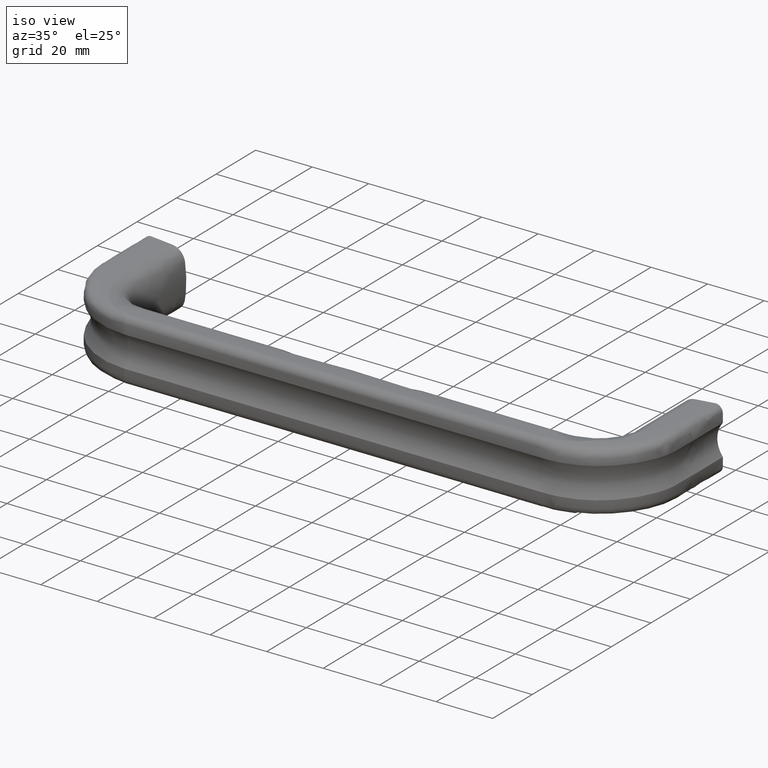
[diagram: clean part render]
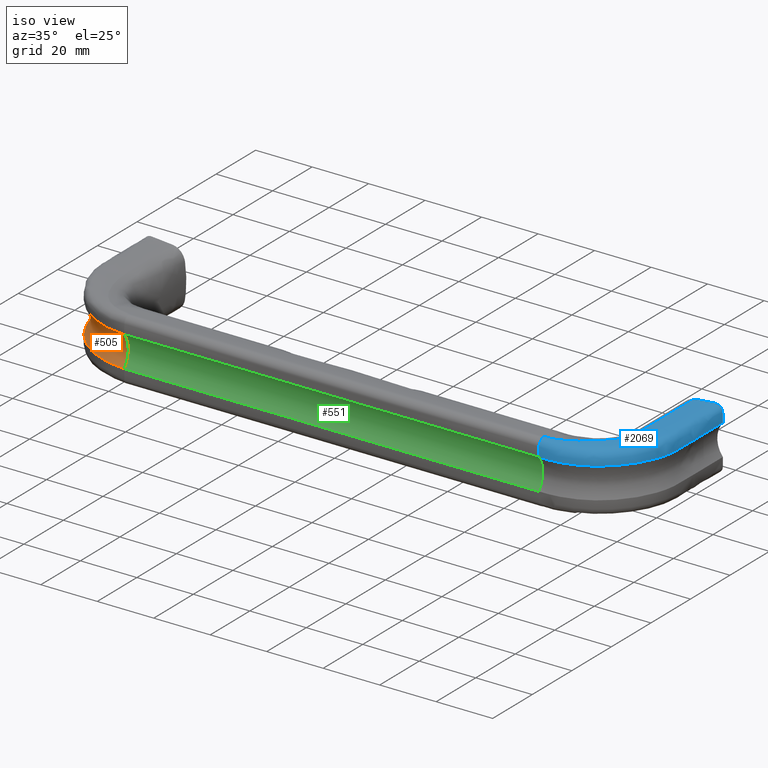
[diagram: same view with three faces highlighted in distinct colors, each labeled with its STEP entity id]
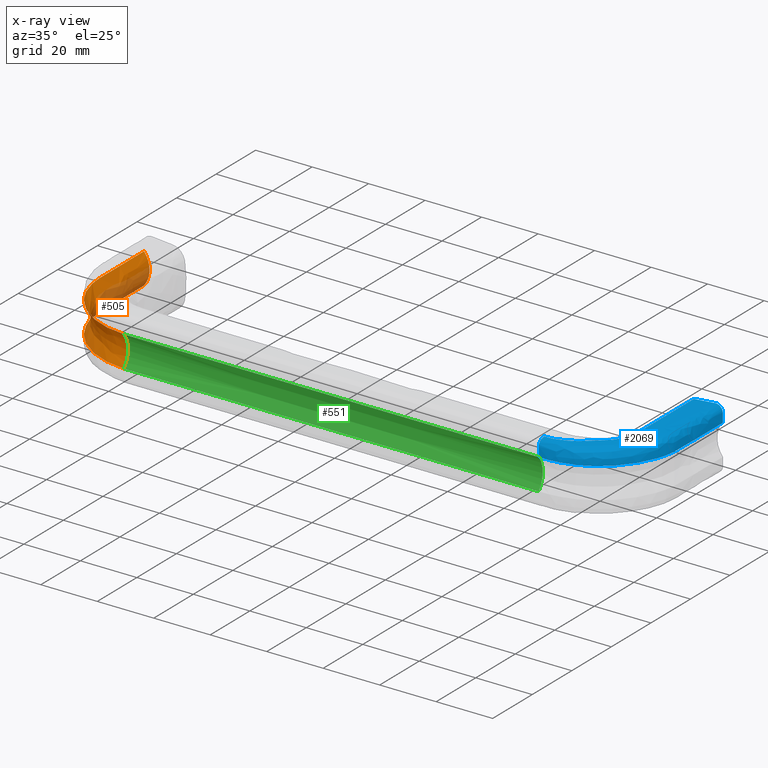
[diagram: x-ray of the same camera — body ghosted, the three highlighted faces saturated]
A machine part, iso view with three faces highlighted in distinct colors.
The next image is the same camera in x-ray (body ghosted, the three faces saturated) — at least one of them is partly hidden behind the body in this view.
Their STEP definitions:

[orange] entity #505 — the highlighted face is a freeform B-spline surface patch.
#432=CARTESIAN_POINT('',(-74.455555555555705,-3.932523E-010,-5.477225575051659));
#433=CARTESIAN_POINT('',(-74.455555555555705,2.666666666273415,-2.312606353910700));
#434=CARTESIAN_POINT('',(-74.455555555555705,2.666666666273410,2.312606353910705));
#435=CARTESIAN_POINT('',(-74.455555555555705,-3.932540E-010,5.477225575051659));
#436=CARTESIAN_POINT('',(-89.358226491300201,0.522738654041827,-5.477225575051659));
#437=CARTESIAN_POINT('',(-87.959924645166709,3.189405320708495,-2.312606353910700));
#438=CARTESIAN_POINT('',(-87.959924645166709,3.189405320708490,2.312606353910705));
#439=CARTESIAN_POINT('',(-89.358226491300201,0.522738654041826,5.477225575051659));
#440=CARTESIAN_POINT('',(-102.499999999827390,12.561085448286059,-5.477225575051670));
#441=CARTESIAN_POINT('',(-99.833333333160780,13.959387294419560,-2.312606353910705));
#442=CARTESIAN_POINT('',(-99.833333333160780,13.959387294419560,2.312606353910710));
#443=CARTESIAN_POINT('',(-102.499999999827390,12.561085448286059,5.477225575051670));
#444=CARTESIAN_POINT('',(-102.499999999828200,27.999999999998700,-5.477225575051670));
#445=CARTESIAN_POINT('',(-99.833333333161491,27.999999999998700,-2.312606353910705));
#446=CARTESIAN_POINT('',(-99.833333333161491,27.999999999998700,2.312606353910710));
#447=CARTESIAN_POINT('',(-102.499999999828200,27.999999999998700,5.477225575051670));
#448=CARTESIAN_POINT('',(-102.499999999828200,35.333333333331993,-5.477225575051670));
#449=CARTESIAN_POINT('',(-99.833333333161491,35.333333333331993,-2.312606353910705));
#450=CARTESIAN_POINT('',(-99.833333333161491,35.333333333331993,2.312606353910710));
#451=CARTESIAN_POINT('',(-102.499999999828200,35.333333333331993,5.477225575051670));
#452=CARTESIAN_POINT('',(-102.500000000000000,42.666666666667403,-5.477225575051670));
#453=CARTESIAN_POINT('',(-99.833333333333400,42.666666666667403,-2.312606353910705));
#454=CARTESIAN_POINT('',(-99.833333333333400,42.666666666667403,2.312606353910710));
#455=CARTESIAN_POINT('',(-102.500000000000000,42.666666666667403,5.477225575051670));
#456=CARTESIAN_POINT('',(-102.500000000000000,50.000000000000703,-5.477225575051670));
#457=CARTESIAN_POINT('',(-99.833333333333400,50.000000000000703,-2.312606353910705));
#458=CARTESIAN_POINT('',(-99.833333333333400,50.000000000000703,2.312606353910710));
#459=CARTESIAN_POINT('',(-102.500000000000000,50.000000000000703,5.477225575051670));
#460=B_SPLINE_SURFACE_WITH_KNOTS('',3,3,((#432,#436,#440,#444,#448,#452,#456),(#433,#437,#441,#445,#449,#453,#457),(#434,#438,#442,#446,#450,#454,#458),(#435,#439,#443,#447,#451,#455,#459)),.UNSPECIFIED.,.F.,.F.,.U.,(4,4),(4,3,4),(0.0,12.415044636783870),(0.0,46.316743655137898,92.633487310275797),.UNSPECIFIED.);
#461=CARTESIAN_POINT('',(-74.455555555555705,-3.932523E-010,-5.477225575051659));
#462=VERTEX_POINT('',#461);
#463=CARTESIAN_POINT('',(-74.455555555555705,-3.932540E-010,5.477225575051659));
#464=VERTEX_POINT('',#463);
#465=CARTESIAN_POINT('',(-74.455555555555705,-3.932523E-010,-5.477225575051659));
#466=CARTESIAN_POINT('',(-74.455555555555705,2.666666666273415,-2.312606353910700));
#467=CARTESIAN_POINT('',(-74.455555555555705,2.666666666273410,2.312606353910705));
#468=CARTESIAN_POINT('',(-74.455555555555705,-3.932540E-010,5.477225575051659));
#469=B_SPLINE_CURVE_WITH_KNOTS('',3,(#465,#466,#467,#468),.UNSPECIFIED.,.F.,.U.,(4,4),(0.940578723228143,1.0),.UNSPECIFIED.);
#470=EDGE_CURVE('',#462,#464,#469,.T.);
#471=ORIENTED_EDGE('',*,*,#470,.T.);
#472=CARTESIAN_POINT('',(-102.500000000000000,50.000000000000703,5.477225575051670));
#473=VERTEX_POINT('',#472);
#474=CARTESIAN_POINT('',(-74.455555555555705,-3.932540E-010,5.477225575051659));
#475=CARTESIAN_POINT('',(-89.358226491300201,0.522738654041826,5.477225575051659));
#476=CARTESIAN_POINT('',(-102.499999999827390,12.561085448286059,5.477225575051659));
#477=CARTESIAN_POINT('',(-102.499999999828200,27.999999999998700,5.477225575051659));
#478=CARTESIAN_POINT('',(-102.499999999828200,35.333333333331993,5.477225575051659));
#479=CARTESIAN_POINT('',(-102.500000000000000,42.666666666667403,5.477225575051659));
#480=CARTESIAN_POINT('',(-102.500000000000000,50.000000000000703,5.477225575051659));
#481=B_SPLINE_CURVE_WITH_KNOTS('',3,(#474,#475,#476,#477,#478,#479,#480),.UNSPECIFIED.,.F.,.U.,(4,3,4),(4.0,5.0,6.0),.UNSPECIFIED.);
#482=EDGE_CURVE('',#464,#473,#481,.T.);
#483=ORIENTED_EDGE('',*,*,#482,.T.);
#484=CARTESIAN_POINT('',(-102.500000000000000,50.000000000000703,-5.477225575051670));
#485=VERTEX_POINT('',#484);
#486=CARTESIAN_POINT('',(-102.500000000000000,50.000000000000703,-5.477225575051670));
#487=CARTESIAN_POINT('',(-99.833333333333400,50.000000000000703,-2.312606353910705));
#488=CARTESIAN_POINT('',(-99.833333333333400,50.000000000000703,2.312606353910710));
#489=CARTESIAN_POINT('',(-102.500000000000000,50.000000000000703,5.477225575051670));
#490=B_SPLINE_CURVE_WITH_KNOTS('',3,(#486,#487,#488,#489),.UNSPECIFIED.,.F.,.U.,(4,4),(0.940578723228143,1.0),.UNSPECIFIED.);
#491=EDGE_CURVE('',#485,#473,#490,.T.);
#492=ORIENTED_EDGE('',*,*,#491,.F.);
#493=CARTESIAN_POINT('',(-74.455555555555705,-3.932523E-010,-5.477225575051659));
#494=CARTESIAN_POINT('',(-89.358226491300201,0.522738654041827,-5.477225575051659));
#495=CARTESIAN_POINT('',(-102.499999999827390,12.561085448286059,-5.477225575051670));
#496=CARTESIAN_POINT('',(-102.499999999828200,27.999999999998700,-5.477225575051670));
#497=CARTESIAN_POINT('',(-102.499999999828200,35.333333333331993,-5.477225575051670));
#498=CARTESIAN_POINT('',(-102.500000000000000,42.666666666667403,-5.477225575051670));
#499=CARTESIAN_POINT('',(-102.500000000000000,50.000000000000703,-5.477225575051670));
#500=B_SPLINE_CURVE_WITH_KNOTS('',3,(#493,#494,#495,#496,#497,#498,#499),.UNSPECIFIED.,.F.,.U.,(4,3,4),(4.0,5.0,6.0),.UNSPECIFIED.);
#501=EDGE_CURVE('',#462,#485,#500,.T.);
#502=ORIENTED_EDGE('',*,*,#501,.F.);
#503=EDGE_LOOP('',(#471,#483,#492,#502));
#504=FACE_OUTER_BOUND('',#503,.T.);
#505=ADVANCED_FACE('',(#504),#460,.T.);

[blue] entity #2069 — the highlighted face is a freeform B-spline surface patch.
#525=CARTESIAN_POINT('',(72.279322906947300,0.008530691704573,5.477225575051659));
#526=VERTEX_POINT('',#525);
#599=CARTESIAN_POINT('',(102.500000000000000,50.000000000000703,5.477225575051670));
#600=VERTEX_POINT('',#599);
#608=CARTESIAN_POINT('',(102.500000000000000,50.000000000000703,5.477225575051659));
#609=CARTESIAN_POINT('',(102.500000000000000,42.666666666667403,5.477225575051659));
#610=CARTESIAN_POINT('',(102.500000000000000,35.333333333331993,5.477225575051659));
#611=CARTESIAN_POINT('',(102.500000000000000,27.999999999998700,5.477225575051659));
#612=CARTESIAN_POINT('',(102.500000000000000,20.077362500900399,5.477225575051659));
#613=CARTESIAN_POINT('',(98.827712575007496,12.794172355642219,5.477225575051659));
#614=CARTESIAN_POINT('',(93.206394417583098,7.408446156282840,5.477225575051659));
#615=CARTESIAN_POINT('',(87.639024475649194,2.074407178574890,5.477225575051659));
#616=CARTESIAN_POINT('',(80.029288747621507,-0.288197621302261,5.477225575051650));
#617=CARTESIAN_POINT('',(72.352659783643304,0.005390529753475,5.477225575051659));
#618=CARTESIAN_POINT('',(72.279322906947300,0.008530691704573,5.477225575051659));
#619=B_SPLINE_CURVE_WITH_KNOTS('',3,(#608,#609,#610,#611,#612,#613,#614,#615,#616,#617,#618),.UNSPECIFIED.,.F.,.U.,(4,3,3,1,4),(0.0,1.0,2.0,2.990402924371170,3.0),.UNSPECIFIED.);
#620=EDGE_CURVE('',#600,#526,#619,.T.);
#1304=CARTESIAN_POINT('',(72.303397279750200,2.942482686218115,10.962028225916219));
#1305=VERTEX_POINT('',#1304);
#1538=CARTESIAN_POINT('',(92.218183268673201,50.000000000000703,10.321889405628880));
#1539=VERTEX_POINT('',#1538);
#1563=CARTESIAN_POINT('',(92.218183268673201,50.000000000000703,10.321889405628880));
#1564=CARTESIAN_POINT('',(92.218183268673201,42.666666666667403,10.321889405628880));
#1565=CARTESIAN_POINT('',(92.218183268673201,35.333333333332050,10.321889405628880));
#1566=CARTESIAN_POINT('',(92.218183268673201,27.999999999998700,10.321889405628880));
#1567=CARTESIAN_POINT('',(92.218183268672803,22.880770596163451,10.321889405628880));
#1568=CARTESIAN_POINT('',(92.946980937275796,16.267702470286149,10.643502086382741));
#1569=CARTESIAN_POINT('',(88.614140948313292,12.134085784999920,10.643502086382741));
#1570=CARTESIAN_POINT('',(84.322883552412605,8.040139731662970,10.643502086382741));
#1571=CARTESIAN_POINT('',(79.199279551866994,2.634037471697075,10.963571496526500));
#1572=CARTESIAN_POINT('',(72.369056858675108,2.939405519888280,10.962028225916219));
#1573=CARTESIAN_POINT('',(72.303397279750200,2.942482686218115,10.962028225916219));
#1574=B_SPLINE_CURVE_WITH_KNOTS('',3,(#1563,#1564,#1565,#1566,#1567,#1568,#1569,#1570,#1571,#1572,#1573),.UNSPECIFIED.,.F.,.U.,(4,3,3,1,4),(0.0,1.0,2.0,2.990402924371170,3.0),.UNSPECIFIED.);
#1575=EDGE_CURVE('',#1539,#1305,#1574,.T.);
#1824=CARTESIAN_POINT('',(72.279322906947300,0.008530691704573,5.477225575051659));
#1825=CARTESIAN_POINT('',(72.279322906947300,0.008530691704573,5.984084477071719));
#1826=CARTESIAN_POINT('',(72.279322906947300,0.008530691704573,6.490943379091790));
#1827=CARTESIAN_POINT('',(72.279322906947300,0.008530691704573,7.350395460912730));
#1828=CARTESIAN_POINT('',(72.279322906947300,0.008530691704573,7.702988640713620));
#1829=CARTESIAN_POINT('',(72.279322906947300,0.008530691704573,8.203721213676340));
#1830=CARTESIAN_POINT('',(72.279322906947300,0.008530691704573,8.351860606838171));
#1831=CARTESIAN_POINT('',(72.279322906947300,0.008530691704573,8.704453786639050));
#1832=CARTESIAN_POINT('',(72.279528246186004,0.033555454502781,8.906009433303641));
#1833=CARTESIAN_POINT('',(72.280957461436202,0.207734402729886,9.609623150398470));
#1834=CARTESIAN_POINT('',(72.283290482390314,0.492060459211813,10.071508045879860));
#1835=CARTESIAN_POINT('',(72.291017228255114,1.433721603485300,10.861703768504240));
#1836=CARTESIAN_POINT('',(72.296698203214092,2.126063952257315,11.065409859950821));
#1837=CARTESIAN_POINT('',(72.302682693597887,2.855395828998005,10.976196125486400));
#1838=CARTESIAN_POINT('',(72.303040272326399,2.898974070157680,10.969699364187701));
#1839=CARTESIAN_POINT('',(72.303397279750200,2.942482686218115,10.962028225916219));
#1840=B_SPLINE_CURVE_WITH_KNOTS('',3,(#1824,#1825,#1826,#1827,#1828,#1829,#1830,#1831,#1832,#1833,#1834,#1835,#1836,#1837,#1838,#1839),.UNSPECIFIED.,.F.,.U.,(4,2,2,2,2,2,2,4),(0.0,0.051436715951470,0.087218341101117,0.102251723876718,0.122999966250764,0.177243718189037,0.247752122268148,0.252235712501356),.UNSPECIFIED.);
#1841=EDGE_CURVE('',#526,#1305,#1840,.T.);
#1849=CARTESIAN_POINT('',(102.500000000000000,50.330000015629899,5.402911362622774));
#1850=CARTESIAN_POINT('',(102.500000000000000,50.330000015629899,6.435274241748518));
#1851=CARTESIAN_POINT('',(102.500000000000000,50.330000015629913,7.467637120874260));
#1852=CARTESIAN_POINT('',(102.500000000000000,50.330000015629899,9.200924617656970));
#1853=CARTESIAN_POINT('',(102.205751354450000,50.330000015629899,9.869655534059520));
#1854=CARTESIAN_POINT('',(101.471856008384800,50.330000015629899,10.542146718125361));
#1855=CARTESIAN_POINT('',(100.881531777777400,50.330000015629899,10.915399608547180));
#1856=CARTESIAN_POINT('',(100.187000400442000,50.330000015629899,11.025910008971840));
#1857=CARTESIAN_POINT('',(98.723575700171295,50.330000015629899,10.897876937774340));
#1858=CARTESIAN_POINT('',(96.289110685578777,50.330000015629892,10.684888847247031));
#1859=CARTESIAN_POINT('',(93.854645670986301,50.330000015629899,10.471900756719700));
#1860=CARTESIAN_POINT('',(92.391213991946174,50.330000015629899,10.343889781969720));
#1861=CARTESIAN_POINT('',(92.266792222796383,50.330000015629899,10.329573202651870));
#1862=CARTESIAN_POINT('',(92.143616414522185,50.330000015629899,10.311311614207820));
#1863=CARTESIAN_POINT('',(92.106277120598648,50.330000015629899,10.306199606255049));
#1864=CARTESIAN_POINT('',(102.500000000000000,42.886666677086943,5.402911362622774));
#1865=CARTESIAN_POINT('',(102.500000000000000,42.886666677086943,6.435274241748518));
#1866=CARTESIAN_POINT('',(102.500000000000000,42.886666677086943,7.467637120874261));
#1867=CARTESIAN_POINT('',(102.500000000000000,42.886666677086943,9.200924617656970));
#1868=CARTESIAN_POINT('',(102.205751354450000,42.886666677086943,9.869655534059522));
#1869=CARTESIAN_POINT('',(101.471856008384800,42.886666677086943,10.542146718125361));
#1870=CARTESIAN_POINT('',(100.881531777777400,42.886666677086929,10.915399608547180));
#1871=CARTESIAN_POINT('',(100.187000400442100,42.886666677086943,11.025910008971840));
#1872=CARTESIAN_POINT('',(98.723575700171196,42.886666677086943,10.897876937774340));
#1873=CARTESIAN_POINT('',(96.289110685578862,42.886666677086943,10.684888847247031));
#1874=CARTESIAN_POINT('',(93.854645670986244,42.886666677086943,10.471900756719700));
#1875=CARTESIAN_POINT('',(92.391213991946174,42.886666677086943,10.343889781969720));
#1876=CARTESIAN_POINT('',(92.266792222796383,42.886666677086943,10.329573202651870));
#1877=CARTESIAN_POINT('',(92.143616414522185,42.886666677086943,10.311311614207820));
#1878=CARTESIAN_POINT('',(92.106277120598676,42.886666677086943,10.306199606255049));
#1879=CARTESIAN_POINT('',(102.500000000000000,35.443333338541727,5.402911362622774));
#1880=CARTESIAN_POINT('',(102.500000000000000,35.443333338541727,6.435274241748518));
#1881=CARTESIAN_POINT('',(102.500000000000000,35.443333338541727,7.467637120874261));
#1882=CARTESIAN_POINT('',(102.500000000000000,35.443333338541727,9.200924617656970));
#1883=CARTESIAN_POINT('',(102.205751354450000,35.443333338541727,9.869655534059522));
#1884=CARTESIAN_POINT('',(101.471856008384800,35.443333338541727,10.542146718125361));
#1885=CARTESIAN_POINT('',(100.881531777777400,35.443333338541727,10.915399608547180));
#1886=CARTESIAN_POINT('',(100.187000400442000,35.443333338541727,11.025910008971840));
#1887=CARTESIAN_POINT('',(98.723575700171210,35.443333338541720,10.897876937774340));
#1888=CARTESIAN_POINT('',(96.289110685578819,35.443333338541763,10.684888847247031));
#1889=CARTESIAN_POINT('',(93.854645670986301,35.443333338541791,10.471900756719700));
#1890=CARTESIAN_POINT('',(92.391213991946174,35.443333338541777,10.343889781969720));
#1891=CARTESIAN_POINT('',(92.266792222796383,35.443333338541777,10.329573202651870));
#1892=CARTESIAN_POINT('',(92.143616414522185,35.443333338541777,10.311311614207820));
#1893=CARTESIAN_POINT('',(92.106277120598662,35.443333338541777,10.306199606255049));
#1894=CARTESIAN_POINT('',(102.500000000000000,27.999999999998700,5.402911362622774));
#1895=CARTESIAN_POINT('',(102.500000000000000,27.999999999998700,6.435274241748518));
#1896=CARTESIAN_POINT('',(102.500000000000000,27.999999999998710,7.467637120874260));
#1897=CARTESIAN_POINT('',(102.500000000000000,27.999999999998700,9.200924617656970));
#1898=CARTESIAN_POINT('',(102.205751354450000,27.999999999998700,9.869655534059520));
#1899=CARTESIAN_POINT('',(101.471856008384800,27.999999999998700,10.542146718125361));
#1900=CARTESIAN_POINT('',(100.881531777777400,27.999999999998700,10.915399608547180));
#1901=CARTESIAN_POINT('',(100.187000400442000,27.999999999998700,11.025910008971840));
#1902=CARTESIAN_POINT('',(98.723575700171295,27.999999999998700,10.897876937774340));
#1903=CARTESIAN_POINT('',(96.289110685578777,27.999999999998700,10.684888847247031));
#1904=CARTESIAN_POINT('',(93.854645670986301,27.999999999998700,10.471900756719700));
#1905=CARTESIAN_POINT('',(92.391213991946174,27.999999999998700,10.343889781969720));
#1906=CARTESIAN_POINT('',(92.266792222796383,27.999999999998700,10.329573202651870));
#1907=CARTESIAN_POINT('',(92.143616414522185,27.999999999998700,10.311311614207820));
#1908=CARTESIAN_POINT('',(92.106277120598648,27.999999999998700,10.306199606255049));
#1909=CARTESIAN_POINT('',(102.500000000000000,20.077362500900399,5.402911362622774));
#1910=CARTESIAN_POINT('',(102.500000000000000,20.077362500900399,6.435274241748518));
#1911=CARTESIAN_POINT('',(102.500000000000000,20.077362500900410,7.467637120874260));
#1912=CARTESIAN_POINT('',(102.500000000000000,20.077362500900399,9.200924617656970));
#1913=CARTESIAN_POINT('',(102.205751354449600,20.157591419243399,9.869655534059520));
#1914=CARTESIAN_POINT('',(101.471856008384510,20.357693036301640,10.542146718125361));
#1915=CARTESIAN_POINT('',(100.881531777776900,20.518649000618041,10.915399608547180));
#1916=CARTESIAN_POINT('',(100.187000400441410,20.708017760683902,11.025910008971840));
#1917=CARTESIAN_POINT('',(98.723575700170883,21.107030577071399,10.897876937774340));
#1918=CARTESIAN_POINT('',(96.289110685578322,21.770804218236272,10.684888847247031));
#1919=CARTESIAN_POINT('',(93.854645670985889,22.434577859401251,10.471900756719700));
#1920=CARTESIAN_POINT('',(92.391213991945762,22.833592578598260,10.343889781969720));
#1921=CARTESIAN_POINT('',(92.266792222795971,22.867517030276030,10.329573202651870));
#1922=CARTESIAN_POINT('',(92.143616414521816,22.901101762145839,10.311311614207820));
#1923=CARTESIAN_POINT('',(92.106277120598222,22.911282577617659,10.306199606255049));
#1924=CARTESIAN_POINT('',(98.827712575007496,12.794172355642219,5.421465990020469));
#1925=CARTESIAN_POINT('',(98.827712575007524,12.794172355642219,6.196070522050499));
#1926=CARTESIAN_POINT('',(98.827712575007510,12.794172355642219,6.970675054080542));
#1927=CARTESIAN_POINT('',(98.827712575007496,12.794172355642219,8.271198714380940));
#1928=CARTESIAN_POINT('',(98.697698137303291,12.872449231300919,8.781098605803191));
#1929=CARTESIAN_POINT('',(98.372394024136256,13.068251125667651,9.367164858447044));
#1930=CARTESIAN_POINT('',(98.118242329003238,13.221601445633571,9.730891128210994));
#1931=CARTESIAN_POINT('',(97.794839921481383,13.415482017541169,9.960918044678921));
#1932=CARTESIAN_POINT('',(97.070451766086379,13.847711678006990,10.248624204529831));
#1933=CARTESIAN_POINT('',(95.682726670424955,14.667570557886201,10.689201978906670));
#1934=CARTESIAN_POINT('',(94.040995386907426,15.627627193455799,10.771281756777350));
#1935=CARTESIAN_POINT('',(93.063140464280266,16.199757032976031,10.661573306391430));
#1936=CARTESIAN_POINT('',(92.979697006412422,16.248568553606461,10.649735741895560));
#1937=CARTESIAN_POINT('',(92.896861375733963,16.297016995521531,10.634870238196370));
#1938=CARTESIAN_POINT('',(92.871774340985851,16.311690537995059,10.630690081945330));
#1939=CARTESIAN_POINT('',(93.206394417583098,7.408446156282840,5.421465990020469));
#1940=CARTESIAN_POINT('',(93.206394417583070,7.408446156282840,6.196070522050499));
#1941=CARTESIAN_POINT('',(93.206394417583098,7.408446156282840,6.970675054080542));
#1942=CARTESIAN_POINT('',(93.206394417583098,7.408446156282850,8.271198714380940));
#1943=CARTESIAN_POINT('',(93.105242520392906,7.514302792877200,8.781098605803191));
#1944=CARTESIAN_POINT('',(92.852141146807426,7.779114518694230,9.367164858447044));
#1945=CARTESIAN_POINT('',(92.654494848564795,7.986354462154789,9.730891128210994));
#1946=CARTESIAN_POINT('',(92.402675975469180,8.248895182927473,9.960918044678921));
#1947=CARTESIAN_POINT('',(91.838109114606183,8.835057883576591,10.248624204529831));
#1948=CARTESIAN_POINT('',(90.754482883170510,9.950374913394386,10.689201978906670));
#1949=CARTESIAN_POINT('',(89.470007806619563,11.260652518843351,10.771281756777350));
#1950=CARTESIAN_POINT('',(88.705018672814120,12.041361910648730,10.661573306391430));
#1951=CARTESIAN_POINT('',(88.639737155864424,12.107972886168319,10.649735741895560));
#1952=CARTESIAN_POINT('',(88.574929260335963,12.174091646832460,10.634870238196370));
#1953=CARTESIAN_POINT('',(88.555302179937271,12.194116647857900,10.630690081945330));
#1954=CARTESIAN_POINT('',(87.639024475649194,2.074407178574890,5.421465990020469));
#1955=CARTESIAN_POINT('',(87.639024475649180,2.074407178574890,6.196070522050499));
#1956=CARTESIAN_POINT('',(87.639024475649194,2.074407178574890,6.970675054080542));
#1957=CARTESIAN_POINT('',(87.639024475649194,2.074407178574910,8.271198714380940));
#1958=CARTESIAN_POINT('',(87.566458122988891,2.207578891053370,8.781098605803191));
#1959=CARTESIAN_POINT('',(87.384866553832495,2.540738155749163,9.367164858447044));
#1960=CARTESIAN_POINT('',(87.243183365913012,2.801350539912071,9.730891128210994));
#1961=CARTESIAN_POINT('',(87.062261034649836,3.131892472908481,9.960918044678921));
#1962=CARTESIAN_POINT('',(86.655981651268050,3.870510906712486,10.248624204529831));
#1963=CARTESIAN_POINT('',(85.873535824259818,5.278450552258795,10.689201978906670));
#1964=CARTESIAN_POINT('',(84.942888339838106,6.935588030452349,10.771281756777350));
#1965=CARTESIAN_POINT('',(84.388722105780346,7.922875220804978,10.661573306391430));
#1966=CARTESIAN_POINT('',(84.341428228228153,8.007114828499033,10.649735741895560));
#1967=CARTESIAN_POINT('',(84.294475054312372,8.090734324526721,10.634870238196370));
#1968=CARTESIAN_POINT('',(84.280255528668377,8.116059425751619,10.630690081945330));
#1969=CARTESIAN_POINT('',(80.029288747621507,-0.288197621302261,5.439931582336947));
#1970=CARTESIAN_POINT('',(80.029288747621507,-0.288197621302261,5.958014630446863));
#1971=CARTESIAN_POINT('',(80.029288747621521,-0.288197621302261,6.476097678556663));
#1972=CARTESIAN_POINT('',(80.029288747621507,-0.288197621302261,7.345934136008870));
#1973=CARTESIAN_POINT('',(80.029640334211607,-0.288842843042236,7.697765159130230));
#1974=CARTESIAN_POINT('',(80.029868195827788,-0.288182968754448,8.197821193653727));
#1975=CARTESIAN_POINT('',(80.034782493953429,-0.304192474592677,8.552066556609182));
#1976=CARTESIAN_POINT('',(80.025208961893512,-0.269343665248655,8.901036484598741));
#1977=CARTESIAN_POINT('',(79.977988148784817,-0.101348670218520,9.602486935076925));
#1978=CARTESIAN_POINT('',(79.784409394860262,0.580261533031797,10.693494413841000));
#1979=CARTESIAN_POINT('',(79.430891905110911,1.821040168123417,11.069226165785411));
#1980=CARTESIAN_POINT('',(79.224073960278375,2.547009312613729,10.977732414408170));
#1981=CARTESIAN_POINT('',(79.206297700610818,2.609404560702457,10.968361969088001));
#1982=CARTESIAN_POINT('',(79.188556029796061,2.671676408516417,10.956876253892670));
#1983=CARTESIAN_POINT('',(79.183192717853018,2.690501409992606,10.953623477817750));
#1984=CARTESIAN_POINT('',(72.352659783643304,0.005390529753475,5.439842547255762));
#1985=CARTESIAN_POINT('',(72.352659783643304,0.005390529753475,5.959162458541119));
#1986=CARTESIAN_POINT('',(72.352659783643318,0.005390529753475,6.478482369826491));
#1987=CARTESIAN_POINT('',(72.352659783643304,0.005390529753475,7.350395460912730));
#1988=CARTESIAN_POINT('',(72.352659783643304,0.005390529753475,7.702988640713620));
#1989=CARTESIAN_POINT('',(72.352672418645838,0.007651377299628,8.203459388538558));
#1990=CARTESIAN_POINT('',(72.352590482537124,-0.007009882149974,8.557750465343593));
#1991=CARTESIAN_POINT('',(72.352793007120368,0.029228908127301,8.906146888811399));
#1992=CARTESIAN_POINT('',(72.353746301892926,0.199806962280055,9.605602398868484));
#1993=CARTESIAN_POINT('',(72.357571355715649,0.884243987313069,10.693473717115580));
#1994=CARTESIAN_POINT('',(72.364509961028716,2.125805177924477,11.067789574735620));
#1995=CARTESIAN_POINT('',(72.368570157395325,2.852317496703476,10.976207998003240));
#1996=CARTESIAN_POINT('',(72.368919104643496,2.914756465526688,10.966825657036580));
#1997=CARTESIAN_POINT('',(72.369267349563458,2.977069763088443,10.955323645600171));
#1998=CARTESIAN_POINT('',(72.369372626498873,2.995907519582371,10.952066397999610));
#1999=CARTESIAN_POINT('',(72.164697516602970,0.013438758499959,5.439842547255762));
#2000=CARTESIAN_POINT('',(72.164697516602970,0.013438758499959,5.959162458541119));
#2001=CARTESIAN_POINT('',(72.164697516602985,0.013438758499959,6.478482369826491));
#2002=CARTESIAN_POINT('',(72.164697516602970,0.013438758499959,7.350395460912730));
#2003=CARTESIAN_POINT('',(72.164697516602970,0.013438758499959,7.702988640713620));
#2004=CARTESIAN_POINT('',(72.164725313923469,0.015699481632592,8.203459388538558));
#2005=CARTESIAN_POINT('',(72.164545052442122,0.001039028986127,8.557750465343593));
#2006=CARTESIAN_POINT('',(72.164990611572961,0.037275825057529,8.906146888811399));
#2007=CARTESIAN_POINT('',(72.167087883831442,0.207844492369417,9.605602398868484));
#2008=CARTESIAN_POINT('',(72.175503097573156,0.892243853111638,10.693473717115580));
#2009=CARTESIAN_POINT('',(72.190768202191961,2.133736721116260,11.067789574735620));
#2010=CARTESIAN_POINT('',(72.199700735390479,2.860209060218172,10.976207998003240));
#2011=CARTESIAN_POINT('',(72.200468428032892,2.922644593050362,10.966825657036580));
#2012=CARTESIAN_POINT('',(72.201234575536290,2.984954461536749,10.955323645600171));
#2013=CARTESIAN_POINT('',(72.201466187418035,3.003791181396612,10.952066397999610));
#2014=CARTESIAN_POINT('',(72.050072126258627,0.018346825295345,5.439842547255762));
#2015=CARTESIAN_POINT('',(72.050072126258627,0.018346825295345,5.959162458541119));
#2016=CARTESIAN_POINT('',(72.050072126258641,0.018346825295345,6.478482369826491));
#2017=CARTESIAN_POINT('',(72.050072126258627,0.018346825295345,7.350395460912730));
#2018=CARTESIAN_POINT('',(72.050072126258627,0.018346825295345,7.702988640713620));
#2019=CARTESIAN_POINT('',(72.050109170044607,0.020607472556642,8.203459388538558));
#2020=CARTESIAN_POINT('',(72.049868946612392,0.005947511924484,8.557750465343593));
#2021=CARTESIAN_POINT('',(72.050462715968251,0.042183091865488,8.906146888811399));
#2022=CARTESIAN_POINT('',(72.053257622214304,0.212746034782181,9.605602398868484));
#2023=CARTESIAN_POINT('',(72.064472061996156,0.897122426637603,10.693473717115580));
#2024=CARTESIAN_POINT('',(72.084814931679929,2.138573629335696,11.067789574735620));
#2025=CARTESIAN_POINT('',(72.096718771407382,2.865021587554338,10.976207998003240));
#2026=CARTESIAN_POINT('',(72.097741828357911,2.927455025009524,10.966825657036580));
#2027=CARTESIAN_POINT('',(72.098762826196449,2.989762802336288,10.955323645600171));
#2028=CARTESIAN_POINT('',(72.099071481161189,3.008598890023611,10.952066397999610));
#2029=CARTESIAN_POINT('',(71.935446735914297,0.023254892090731,5.439842547255762));
#2030=CARTESIAN_POINT('',(71.935446735914297,0.023254892090731,5.959162458541119));
#2031=CARTESIAN_POINT('',(71.935446735914311,0.023254892090731,6.478482369826491));
#2032=CARTESIAN_POINT('',(71.935446735914297,0.023254892090731,7.350395460912730));
#2033=CARTESIAN_POINT('',(71.935446735914297,0.023254892090731,7.702988640713620));
#2034=CARTESIAN_POINT('',(71.935493026165759,0.025515463480692,8.203459388538558));
#2035=CARTESIAN_POINT('',(71.935192840782705,0.010855994862842,8.557750465343593));
#2036=CARTESIAN_POINT('',(71.935934820363514,0.047090358673447,8.906146888811399));
#2037=CARTESIAN_POINT('',(71.939427360597165,0.217647577194945,9.605602398868484));
#2038=CARTESIAN_POINT('',(71.953441026419114,0.902001000163567,10.693473717115580));
#2039=CARTESIAN_POINT('',(71.978861661167926,2.143410537555131,11.067789574735620));
#2040=CARTESIAN_POINT('',(71.993736807424298,2.869834114890504,10.976207998003240));
#2041=CARTESIAN_POINT('',(71.995015228682902,2.932265456968685,10.966825657036580));
#2042=CARTESIAN_POINT('',(71.996291076856636,2.994571143135830,10.955323645600171));
#2043=CARTESIAN_POINT('',(71.996676774904330,3.013406598650609,10.952066397999610));
#2044=B_SPLINE_SURFACE_WITH_KNOTS('',3,3,((#1849,#1864,#1879,#1894,#1909,#1924,#1939,#1954,#1969,#1984,#1999,#2014,#2029),(#1850,#1865,#1880,#1895,#1910,#1925,#1940,#1955,#1970,#1985,#2000,#2015,#2030),(#1851,#1866,#1881,#1896,#1911,#1926,#1941,#1956,#1971,#1986,#2001,#2016,#2031),(#1852,#1867,#1882,#1897,#1912,#1927,#1942,#1957,#1972,#1987,#2002,#2017,#2032),(#1853,#1868,#1883,#1898,#1913,#1928,#1943,#1958,#1973,#1988,#2003,#2018,#2033),(#1854,#1869,#1884,#1899,#1914,#1929,#1944,#1959,#1974,#1989,#2004,#2019,#2034),(#1855,#1870,#1885,#1900,#1915,#1930,#1945,#1960,#1975,#1990,#2005,#2020,#2035),(#1856,#1871,#1886,#1901,#1916,#1931,#1946,#1961,#1976,#1991,#2006,#2021,#2036),(#1857,#1872,#1887,#1902,#1917,#1932,#1947,#1962,#1977,#1992,#2007,#2022,#2037),(#1858,#1873,#1888,#1903,#1918,#1933,#1948,#1963,#1978,#1993,#2008,#2023,#2038),(#1859,#1874,#1889,#1904,#1919,#1934,#1949,#1964,#1979,#1994,#2009,#2024,#2039),(#1860,#1875,#1890,#1905,#1920,#1935,#1950,#1965,#1980,#1995,#2010,#2025,#2040),(#1861,#1876,#1891,#1906,#1921,#1936,#1951,#1966,#1981,#1996,#2011,#2026,#2041),(#1862,#1877,#1892,#1907,#1922,#1937,#1952,#1967,#1982,#1997,#2012,#2027,#2042),(#1863,#1878,#1893,#1908,#1923,#1938,#1953,#1968,#1983,#1998,#2013,#2028,#2043)),.UNSPECIFIED.,.F.,.F.,.U.,(4,2,2,1,2,1,2,1,4),(4,3,3,1,2,4),(0.0,3.097093347226829,5.199870397958516,6.083336483224060,7.302647448690202,10.490387419816310,14.633951423999971,14.897438356408561,15.011494071307631),(0.0,24.124431201639489,47.892343698934397,71.432153742453366,71.660256196229312,72.016779871364150),.UNSPECIFIED.);
#2045=CARTESIAN_POINT('',(102.500000000000000,50.000000000000703,5.477225575051659));
#2046=CARTESIAN_POINT('',(102.500000000000000,50.000000000000703,6.484817050034440));
#2047=CARTESIAN_POINT('',(102.500000000000000,50.000000000000703,7.492408525017221));
#2048=CARTESIAN_POINT('',(102.500000000000000,50.000000000000703,9.200924617656970));
#2049=CARTESIAN_POINT('',(102.205751354450000,50.000000000000703,9.869655534059520));
#2050=CARTESIAN_POINT('',(101.471856008384800,50.000000000000703,10.542146718125361));
#2051=CARTESIAN_POINT('',(101.223835688365200,50.000000000000703,10.698966134525341));
#2052=CARTESIAN_POINT('',(100.589729602736990,50.000000000000703,10.961829728568860));
#2053=CARTESIAN_POINT('',(100.187000400442000,50.000000000000703,11.025910008971840));
#2054=CARTESIAN_POINT('',(98.723575700171295,50.000000000000703,10.897876937774340));
#2055=CARTESIAN_POINT('',(97.665040757211599,50.000000000000703,10.805267130319301));
#2056=CARTESIAN_POINT('',(95.230575742619109,50.000000000000703,10.592279039792000));
#2057=CARTESIAN_POINT('',(93.854645670986301,50.000000000000703,10.471900756719700));
#2058=CARTESIAN_POINT('',(92.391220970715608,50.000000000000703,10.343867685522200));
#2059=CARTESIAN_POINT('',(92.304356965156884,50.000000000000703,10.333971387114200));
#2060=CARTESIAN_POINT('',(92.218183268673201,50.000000000000703,10.321889405628880));
#2061=B_SPLINE_CURVE_WITH_KNOTS('',3,(#2045,#2046,#2047,#2048,#2049,#2050,#2051,#2052,#2053,#2054,#2055,#2056,#2057,#2058,#2059,#2060),.UNSPECIFIED.,.F.,.U.,(4,2,2,2,2,2,2,4),(0.0,0.051436715951470,0.087218341101117,0.102251723876718,0.122999966250764,0.177243718189037,0.247752122268148,0.252235712501356),.UNSPECIFIED.);
#2062=EDGE_CURVE('',#600,#1539,#2061,.T.);
#2063=ORIENTED_EDGE('',*,*,#2062,.T.);
#2064=ORIENTED_EDGE('',*,*,#1575,.T.);
#2065=ORIENTED_EDGE('',*,*,#1841,.F.);
#2066=ORIENTED_EDGE('',*,*,#620,.F.);
#2067=EDGE_LOOP('',(#2063,#2064,#2065,#2066));
#2068=FACE_OUTER_BOUND('',#2067,.T.);
#2069=ADVANCED_FACE('',(#2068),#2044,.T.);

[green] entity #551 — the highlighted face is a freeform B-spline surface patch.
#461=CARTESIAN_POINT('',(-74.455555555555705,-3.932523E-010,-5.477225575051659));
#462=VERTEX_POINT('',#461);
#463=CARTESIAN_POINT('',(-74.455555555555705,-3.932540E-010,5.477225575051659));
#464=VERTEX_POINT('',#463);
#465=CARTESIAN_POINT('',(-74.455555555555705,-3.932523E-010,-5.477225575051659));
#466=CARTESIAN_POINT('',(-74.455555555555705,2.666666666273415,-2.312606353910700));
#467=CARTESIAN_POINT('',(-74.455555555555705,2.666666666273410,2.312606353910705));
#468=CARTESIAN_POINT('',(-74.455555555555705,-3.932540E-010,5.477225575051659));
#469=B_SPLINE_CURVE_WITH_KNOTS('',3,(#465,#466,#467,#468),.UNSPECIFIED.,.F.,.U.,(4,4),(0.940578723228143,1.0),.UNSPECIFIED.);
#470=EDGE_CURVE('',#462,#464,#469,.T.);
#506=CARTESIAN_POINT('',(72.279322906947300,0.008530691704574,-5.477225575051659));
#507=CARTESIAN_POINT('',(72.301203203319304,2.675089845987760,-2.312606353910700));
#508=CARTESIAN_POINT('',(72.301203203319304,2.675089845987760,2.312606353910705));
#509=CARTESIAN_POINT('',(72.279322906947300,0.008530691704573,5.477225575051659));
#510=CARTESIAN_POINT('',(23.294137721762102,0.008530691704575,-5.477225575051659));
#511=CARTESIAN_POINT('',(23.316018018134098,2.675089845987760,-2.312606353910700));
#512=CARTESIAN_POINT('',(23.316018018134098,2.675089845987760,2.312606353910705));
#513=CARTESIAN_POINT('',(23.294137721762102,0.008530691704574,5.477225575051659));
#514=CARTESIAN_POINT('',(-25.470370370370549,-3.932511E-010,-5.477225575051659));
#515=CARTESIAN_POINT('',(-25.470370370370549,2.666666666273415,-2.312606353910700));
#516=CARTESIAN_POINT('',(-25.470370370370549,2.666666666273415,2.312606353910705));
#517=CARTESIAN_POINT('',(-25.470370370370549,-3.932528E-010,5.477225575051659));
#518=CARTESIAN_POINT('',(-74.455555555555705,-3.932523E-010,-5.477225575051659));
#519=CARTESIAN_POINT('',(-74.455555555555705,2.666666666273415,-2.312606353910700));
#520=CARTESIAN_POINT('',(-74.455555555555705,2.666666666273410,2.312606353910705));
#521=CARTESIAN_POINT('',(-74.455555555555705,-3.932540E-010,5.477225575051659));
#522=B_SPLINE_SURFACE_WITH_KNOTS('',3,3,((#506,#510,#514,#518),(#507,#511,#515,#519),(#508,#512,#516,#520),(#509,#513,#517,#521)),.UNSPECIFIED.,.F.,.F.,.U.,(4,4),(4,4),(0.0,12.415044636783771),(0.0,146.955555555555610),.UNSPECIFIED.);
#523=CARTESIAN_POINT('',(72.279322906947300,0.008530691704574,-5.477225575051659));
#524=VERTEX_POINT('',#523);
#525=CARTESIAN_POINT('',(72.279322906947300,0.008530691704573,5.477225575051659));
#526=VERTEX_POINT('',#525);
#527=CARTESIAN_POINT('',(72.279322906947300,0.008530691704574,-5.477225575051659));
#528=CARTESIAN_POINT('',(72.301203203319304,2.675089845987760,-2.312606353910700));
#529=CARTESIAN_POINT('',(72.301203203319304,2.675089845987760,2.312606353910705));
#530=CARTESIAN_POINT('',(72.279322906947300,0.008530691704573,5.477225575051659));
#531=B_SPLINE_CURVE_WITH_KNOTS('',3,(#527,#528,#529,#530),.UNSPECIFIED.,.F.,.U.,(4,4),(0.940578723228143,1.0),.UNSPECIFIED.);
#532=EDGE_CURVE('',#524,#526,#531,.T.);
#533=ORIENTED_EDGE('',*,*,#532,.T.);
#534=CARTESIAN_POINT('',(72.279322906947300,0.008530691704573,5.477225575051659));
#535=CARTESIAN_POINT('',(23.294137721762102,0.008530691704574,5.477225575051659));
#536=CARTESIAN_POINT('',(-25.470370370370549,-3.932528E-010,5.477225575051659));
#537=CARTESIAN_POINT('',(-74.455555555555705,-3.932540E-010,5.477225575051659));
#538=B_SPLINE_CURVE_WITH_KNOTS('',3,(#534,#535,#536,#537),.UNSPECIFIED.,.F.,.U.,(4,4),(3.0,4.0),.UNSPECIFIED.);
#539=EDGE_CURVE('',#526,#464,#538,.T.);
#540=ORIENTED_EDGE('',*,*,#539,.T.);
#541=ORIENTED_EDGE('',*,*,#470,.F.);
#542=CARTESIAN_POINT('',(72.279322906947300,0.008530691704574,-5.477225575051659));
#543=CARTESIAN_POINT('',(23.294137721762102,0.008530691704575,-5.477225575051659));
#544=CARTESIAN_POINT('',(-25.470370370370549,-3.932511E-010,-5.477225575051659));
#545=CARTESIAN_POINT('',(-74.455555555555705,-3.932523E-010,-5.477225575051659));
#546=B_SPLINE_CURVE_WITH_KNOTS('',3,(#542,#543,#544,#545),.UNSPECIFIED.,.F.,.U.,(4,4),(3.0,4.0),.UNSPECIFIED.);
#547=EDGE_CURVE('',#524,#462,#546,.T.);
#548=ORIENTED_EDGE('',*,*,#547,.F.);
#549=EDGE_LOOP('',(#533,#540,#541,#548));
#550=FACE_OUTER_BOUND('',#549,.T.);
#551=ADVANCED_FACE('',(#550),#522,.T.);